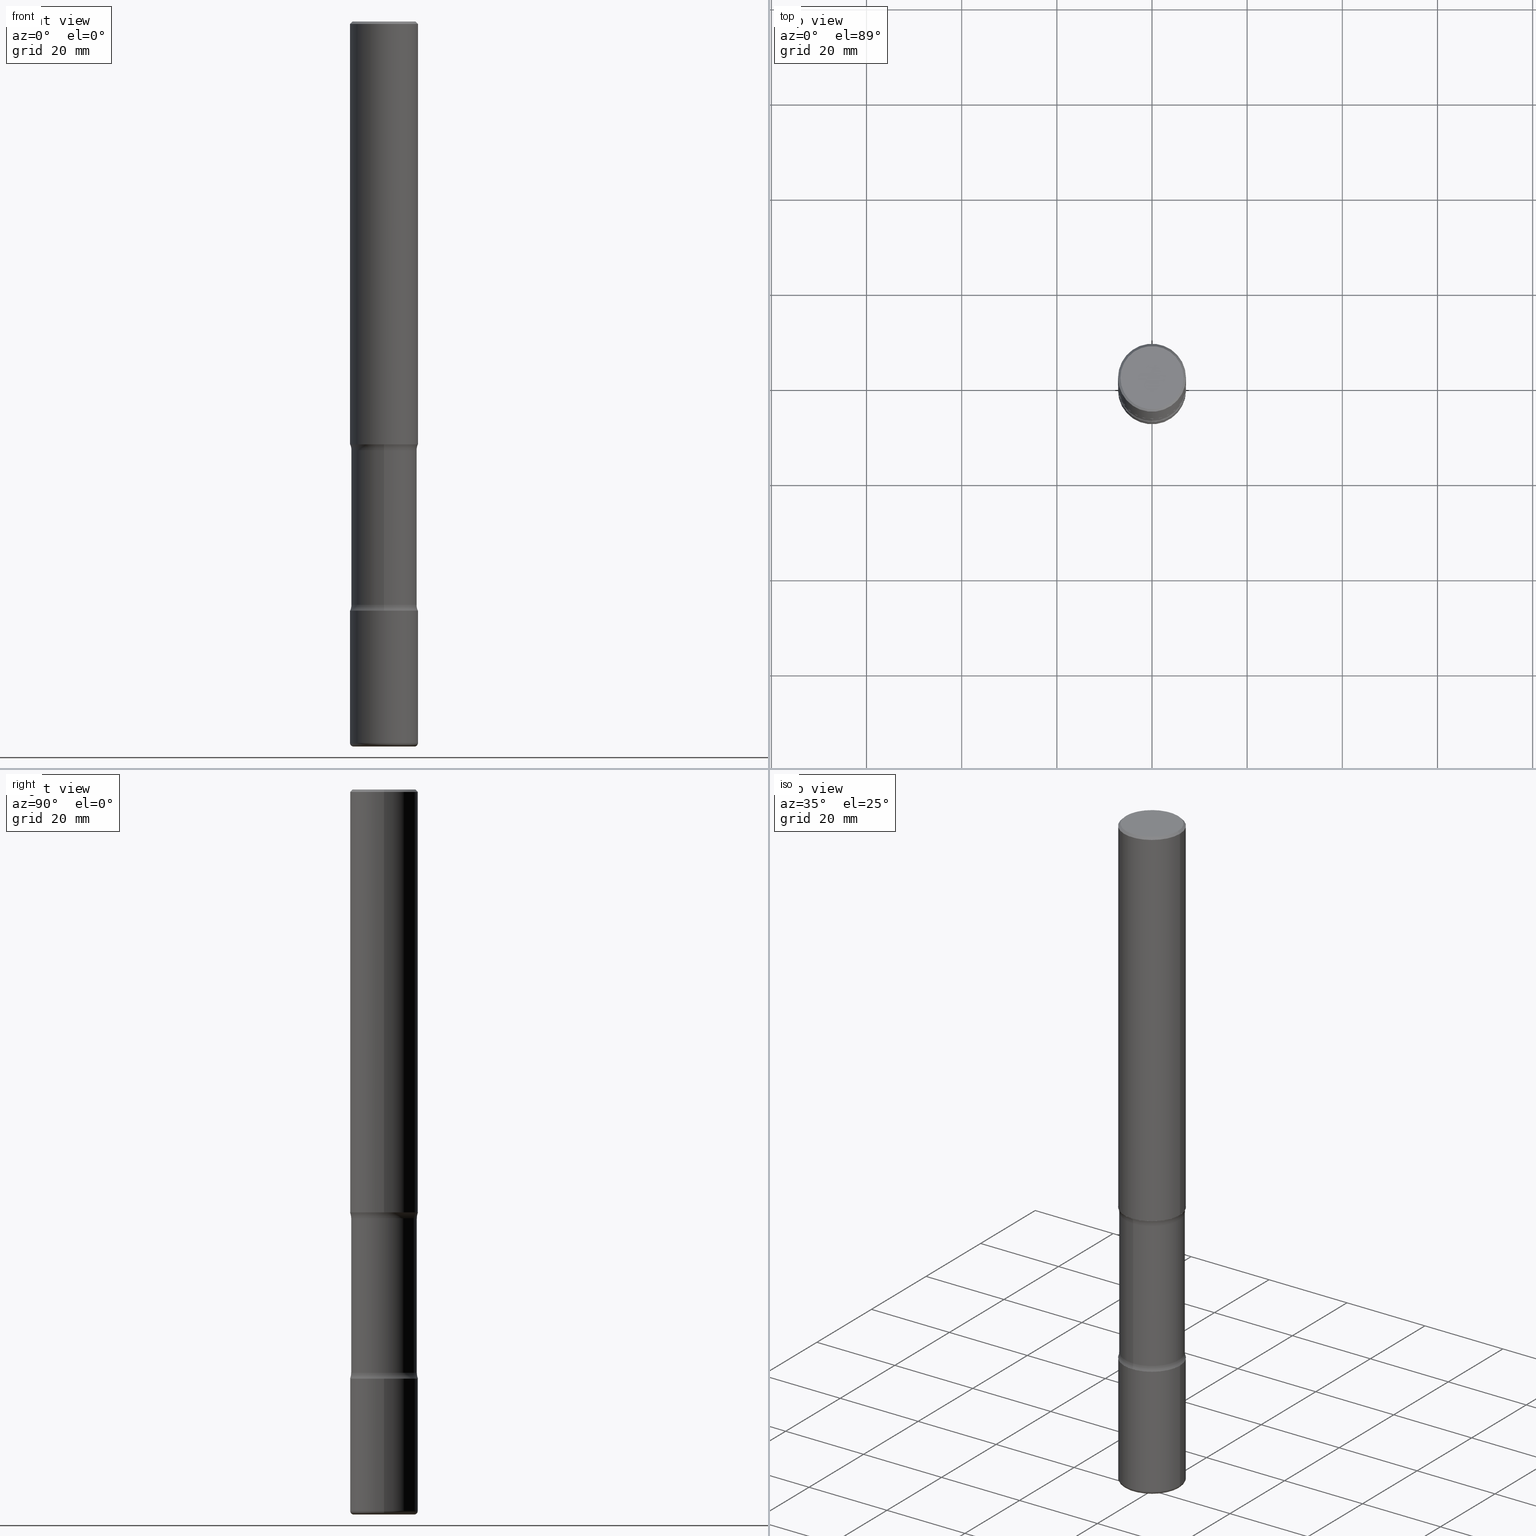
[diagram: canonical four-view strip — front | top / right | iso, engineering-drawing reading convention]
A machine part, canonical four-view strip (front | top / right | iso — engineering-drawing reading convention). The complete STEP part file that produces these views, byte-faithful:
ISO-10303-21;
HEADER;
FILE_DESCRIPTION (( 'STEP AP203' ),
    '1' );
FILE_NAME ('36466.STEP',
    '2024-03-01T23:56:31',
    ( '' ),
    ( '' ),
    'SwSTEP 2.0',
    'SolidWorks 2023',
    '' );
FILE_SCHEMA (( 'CONFIG_CONTROL_DESIGN' ));
ENDSEC;

DATA;
#1 = LINE ( 'NONE', #132, #150 ) ;
#2 = EDGE_CURVE ( 'NONE', #162, #154, #174, .T. ) ;
#3 = PRODUCT ( '36466', '36466', '', ( #446 ) ) ;
#4 = AXIS2_PLACEMENT_3D ( 'NONE', #387, #297, #311 ) ;
#5 = DIRECTION ( 'NONE',  ( 7.105427357601001859E-15, 1.000000000000000000, -3.491481338843145583E-15 ) ) ;
#6 = CIRCLE ( 'NONE', #158, 0.03000000000000029379 ) ;
#7 = ORIENTED_EDGE ( 'NONE', *, *, #63, .F. ) ;
#8 = FACE_OUTER_BOUND ( 'NONE', #534, .T. ) ;
#9 = ORIENTED_EDGE ( 'NONE', *, *, #388, .T. ) ;
#10 = FACE_OUTER_BOUND ( 'NONE', #397, .T. ) ;
#11 = CARTESIAN_POINT ( 'NONE',  ( -0.2812500000000003886, 1.998401444325284534E-15, -1.383450494134194230E-29 ) ) ;
#12 = DIRECTION ( 'NONE',  ( -2.445468806185136597E-29, 3.491481338843145583E-15, 1.000000000000000000 ) ) ;
#13 = EDGE_CURVE ( 'NONE', #408, #396, #46, .T. ) ;
#14 = CIRCLE ( 'NONE', #494, 0.2812500000000004441 ) ;
#15 = SECURITY_CLASSIFICATION ( '', '', #517 ) ;
#16 = CARTESIAN_POINT ( 'NONE',  ( -0.2512500000000003619, -1.905890496929632623E-14, -5.969999999999999751 ) ) ;
#17 = EDGE_LOOP ( 'NONE', ( #84, #167, #67, #259 ) ) ;
#18 = CARTESIAN_POINT ( 'NONE',  ( 1.895874366991938652E-15, 0.2714999999999830882, -4.826601265512413086 ) ) ;
#19 = ADVANCED_FACE ( 'NONE', ( #105 ), #445, .T. ) ;
#20 = AXIS2_PLACEMENT_3D ( 'NONE', #102, #144, #106 ) ;
#21 = CIRCLE ( 'NONE', #418, 0.2812500000000003331 ) ;
#22 = APPROVAL ( #536, 'UNSPECIFIED' ) ;
#23 = CARTESIAN_POINT ( 'NONE',  ( 0.2812500000000003886, -1.963958253099265273E-15, 1.371424718192608693E-29 ) ) ;
#24 = VERTEX_POINT ( 'NONE', #170 ) ;
#25 = ORIENTED_EDGE ( 'NONE', *, *, #177, .T. ) ;
#26 = DIRECTION ( 'NONE',  ( -2.445468806185136597E-29, 3.491481338843145583E-15, 1.000000000000000000 ) ) ;
#27 = CIRCLE ( 'NONE', #257, 0.1250000000000000555 ) ;
#28 = ADVANCED_FACE ( 'NONE', ( #507 ), #74, .F. ) ;
#29 = VERTEX_POINT ( 'NONE', #411 ) ;
#30 = CLOSED_SHELL ( 'NONE', ( #407, #116, #469, #285, #270, #147, #210, #432 ) ) ;
#31 = DIRECTION ( 'NONE',  ( 2.529525800553503552E-29, -3.371106938680637457E-15, -1.000000000000000000 ) ) ;
#32 = ORIENTED_EDGE ( 'NONE', *, *, #295, .T. ) ;
#33 = CALENDAR_DATE ( 2024, 1, 3 ) ;
#34 = CARTESIAN_POINT ( 'NONE',  ( 1.180330283470430845E-28, -1.685198824857329678E-14, -4.826601265512412198 ) ) ;
#35 = ORIENTED_EDGE ( 'NONE', *, *, #366, .F. ) ;
#36 = EDGE_CURVE ( 'NONE', #549, #79, #333, .T. ) ;
#37 = PERSON_AND_ORGANIZATION ( #77, #292 ) ;
#38 = DIRECTION ( 'NONE',  ( -2.445468806185136597E-29, 3.491481338843145583E-15, 1.000000000000000000 ) ) ;
#39 = CARTESIAN_POINT ( 'NONE',  ( 1.459944877292526494E-28, -2.084414359289357934E-14, -5.969999999999999751 ) ) ;
#40 = DATE_AND_TIME ( #33, #313 ) ;
#41 = ORIENTED_EDGE ( 'NONE', *, *, #450, .F. ) ;
#42 = FACE_OUTER_BOUND ( 'NONE', #309, .T. ) ;
#43 = DIRECTION ( 'NONE',  ( 1.000000000000000000, -6.982962677686260400E-15, 4.883557194083111219E-29 ) ) ;
#44 = EDGE_CURVE ( 'NONE', #408, #175, #240, .T. ) ;
#45 = AXIS2_PLACEMENT_3D ( 'NONE', #191, #315, #236 ) ;
#46 = LINE ( 'NONE', #394, #68 ) ;
#47 = FACE_OUTER_BOUND ( 'NONE', #282, .T. ) ;
#48 = LOCAL_TIME ( 18, 56, 31.00000000000000000, #129 ) ;
#49 = DIRECTION ( 'NONE',  ( 2.438088387897960049E-29, -3.491481338843145188E-15, -1.000000000000000000 ) ) ;
#50 = EDGE_CURVE ( 'NONE', #190, #549, #273, .T. ) ;
#51 = ORIENTED_EDGE ( 'NONE', *, *, #76, .T. ) ;
#52 = DIRECTION ( 'NONE',  ( -2.445468806185136877E-29, 3.491481338843145188E-15, 1.000000000000000000 ) ) ;
#53 = DIRECTION ( 'NONE',  ( 6.982962677686266711E-15, 1.000000000000000000, -4.024822090113095251E-15 ) ) ;
#54 = DIRECTION ( 'NONE',  ( -0.7071067811865473507, 2.468850131082255088E-15, -0.7071067811865476838 ) ) ;
#55 = DIRECTION ( 'NONE',  ( -2.438088387897960049E-29, 3.491481338843145188E-15, 1.000000000000000000 ) ) ;
#56 = EDGE_LOOP ( 'NONE', ( #438, #123, #425, #541 ) ) ;
#57 = TOROIDAL_SURFACE ( 'NONE', #376, 0.3965000000000000746, 0.1250000000000000555 ) ;
#58 = DIRECTION ( 'NONE',  ( -2.445468806185136597E-29, 3.491481338843145583E-15, 1.000000000000000000 ) ) ;
#59 = AXIS2_PLACEMENT_3D ( 'NONE', #238, #489, #364 ) ;
#60 = VERTEX_POINT ( 'NONE', #198 ) ;
#61 = CARTESIAN_POINT ( 'NONE',  ( 0.000000000000000000, 0.000000000000000000, 0.000000000000000000 ) ) ;
#62 = ORIENTED_EDGE ( 'NONE', *, *, #519, .F. ) ;
#63 = EDGE_CURVE ( 'NONE', #243, #556, #21, .T. ) ;
#64 = LENGTH_MEASURE_WITH_UNIT ( LENGTH_MEASURE( 0.02539999999999999897 ), #495 );
#65 = CC_DESIGN_PERSON_AND_ORGANIZATION_ASSIGNMENT ( #459, #463, ( #118 ) ) ;
#66 = AXIS2_PLACEMENT_3D ( 'NONE', #274, #12, #488 ) ;
#67 = ORIENTED_EDGE ( 'NONE', *, *, #373, .T. ) ;
#68 = VECTOR ( 'NONE', #52, 39.37007874015748143 ) ;
#69 = AXIS2_PLACEMENT_3D ( 'NONE', #153, #492, #374 ) ;
#70 = ORIENTED_EDGE ( 'NONE', *, *, #486, .F. ) ;
#71 = CARTESIAN_POINT ( 'NONE',  ( 0.2812500000000002220, -1.999344688650107733E-15, -0.02000000000000000042 ) ) ;
#72 = EDGE_CURVE ( 'NONE', #154, #162, #402, .T. ) ;
#73 = PERSON_AND_ORGANIZATION_ROLE ( 'design_owner' ) ;
#74 = PLANE ( 'NONE',  #290 ) ;
#75 = APPROVAL_ROLE ( '' ) ;
#76 = EDGE_CURVE ( 'NONE', #154, #24, #400, .T. ) ;
#77 = PERSON ( 'UNSPECIFIED', 'UNSPECIFIED', 'UNSPECIFIED', ('UNSPECIFIED'), ('UNSPECIFIED'), ('UNSPECIFIED') ) ;
#78 = CARTESIAN_POINT ( 'NONE',  ( -0.2812500000000002220, 1.894128626322401186E-15, -0.02000000000000000042 ) ) ;
#79 = VERTEX_POINT ( 'NONE', #499 ) ;
#80 = APPROVAL_DATE_TIME ( #168, #491 ) ;
#81 = CARTESIAN_POINT ( 'NONE',  ( -1.929515061873162394E-15, -0.2812500000000129341, -3.499999999999999112 ) ) ;
#82 = AXIS2_PLACEMENT_3D ( 'NONE', #135, #405, #440 ) ;
#83 = CLOSED_SHELL ( 'NONE', ( #530, #429, #455, #219, #413, #169 ) ) ;
#84 = ORIENTED_EDGE ( 'NONE', *, *, #50, .F. ) ;
#85 = CIRCLE ( 'NONE', #20, 0.2812500000000003331 ) ;
#86 = APPROVAL_STATUS ( 'not_yet_approved' ) ;
#87 = CARTESIAN_POINT ( 'NONE',  ( 8.565988301991969532E-29, -1.254885679582893261E-14, -3.548398734487589135 ) ) ;
#88 = EDGE_CURVE ( 'NONE', #190, #396, #456, .T. ) ;
#89 = FACE_OUTER_BOUND ( 'NONE', #330, .T. ) ;
#90 = EDGE_LOOP ( 'NONE', ( #477, #378, #444, #490 ) ) ;
#91 = LINE ( 'NONE', #424, #393 ) ;
#92 = AXIS2_PLACEMENT_3D ( 'NONE', #185, #256, #164 ) ;
#93 = SHAPE_DEFINITION_REPRESENTATION ( #140, #365 ) ;
#94 = EDGE_CURVE ( 'NONE', #108, #166, #250, .T. ) ;
#95 = DIRECTION ( 'NONE',  ( 2.529525800553503552E-29, -3.371106938680637457E-15, -1.000000000000000000 ) ) ;
#96 = CC_DESIGN_PERSON_AND_ORGANIZATION_ASSIGNMENT ( #538, #149, ( #197 ) ) ;
#97 = CARTESIAN_POINT ( 'NONE',  ( 4.890937612370273159E-31, -6.982962677686291609E-17, -0.02000000000000000042 ) ) ;
#98 = CYLINDRICAL_SURFACE ( 'NONE', #201, 0.2812500000000003886 ) ;
#99 = EDGE_CURVE ( 'NONE', #243, #514, #117, .T. ) ;
#100 = AXIS2_PLACEMENT_3D ( 'NONE', #522, #95, #266 ) ;
#101 = CIRCLE ( 'NONE', #312, 0.2715000000000000191 ) ;
#102 = CARTESIAN_POINT ( 'NONE',  ( 1.192166043015254091E-28, -1.702097152686033664E-14, -4.875000000000000000 ) ) ;
#103 = LOCAL_TIME ( 18, 56, 31.00000000000000000, #253 ) ;
#104 = FACE_OUTER_BOUND ( 'NONE', #143, .T. ) ;
#105 = FACE_OUTER_BOUND ( 'NONE', #288, .T. ) ;
#106 = DIRECTION ( 'NONE',  ( 1.000000000000000000, -6.982962677686268288E-15, 0.000000000000000000 ) ) ;
#107 = ORIENTED_EDGE ( 'NONE', *, *, #195, .T. ) ;
#108 = VERTEX_POINT ( 'NONE', #142 ) ;
#109 = CYLINDRICAL_SURFACE ( 'NONE', #45, 0.2715000000000000191 ) ;
#110 = AXIS2_PLACEMENT_3D ( 'NONE', #554, #125, #306 ) ;
#111 = VECTOR ( 'NONE', #54, 39.37007874015748143 ) ;
#112 = EDGE_LOOP ( 'NONE', ( #466, #178 ) ) ;
#113 = DIRECTION ( 'NONE',  ( 2.529525800553503552E-29, -3.371106938680637457E-15, -1.000000000000000000 ) ) ;
#114 = DIRECTION ( 'NONE',  ( 1.000000000000000000, -6.982962677686266711E-15, 4.876176775795935232E-29 ) ) ;
#115 = ORIENTED_EDGE ( 'NONE', *, *, #99, .F. ) ;
#116 = ADVANCED_FACE ( 'NONE', ( #547 ), #264, .F. ) ;
#117 = CIRCLE ( 'NONE', #431, 0.1250000000000000555 ) ;
#118 = PRODUCT_DEFINITION_FORMATION_WITH_SPECIFIED_SOURCE ( 'ANY', '', #3, .NOT_KNOWN. ) ;
#119 = PRODUCT_RELATED_PRODUCT_CATEGORY ( 'detail', '', ( #3 ) ) ;
#120 = EDGE_LOOP ( 'NONE', ( #509, #345 ) ) ;
#121 = DIRECTION ( 'NONE',  ( 1.000000000000000000, 0.000000000000000000, 0.000000000000000000 ) ) ;
#122 = CARTESIAN_POINT ( 'NONE',  ( 1.459944877292526494E-28, -2.084414359289357934E-14, -5.969999999999999751 ) ) ;
#123 = ORIENTED_EDGE ( 'NONE', *, *, #341, .T. ) ;
#124 = COORDINATED_UNIVERSAL_TIME_OFFSET ( 5, 0, .BEHIND. ) ;
#125 = DIRECTION ( 'NONE',  ( 2.529525800553503552E-29, -3.371106938680637457E-15, -1.000000000000000000 ) ) ;
#126 = AXIS2_PLACEMENT_3D ( 'NONE', #472, #263, #214 ) ;
#127 = ORIENTED_EDGE ( 'NONE', *, *, #442, .F. ) ;
#128 = APPROVAL_PERSON_ORGANIZATION ( #296, #22, #75 ) ;
#129 = COORDINATED_UNIVERSAL_TIME_OFFSET ( 5, 0, .BEHIND. ) ;
#130 = APPROVAL_ROLE ( '' ) ;
#131 = DIRECTION ( 'NONE',  ( -2.445468806185136597E-29, 3.491481338843145583E-15, 1.000000000000000000 ) ) ;
#132 = CARTESIAN_POINT ( 'NONE',  ( 1.895874366991969024E-15, 0.2714999999999791469, -6.000000000000001776 ) ) ;
#133 = CIRCLE ( 'NONE', #443, 0.2612500000000002043 ) ;
#134 = CC_DESIGN_PERSON_AND_ORGANIZATION_ASSIGNMENT ( #410, #73, ( #3 ) ) ;
#135 = CARTESIAN_POINT ( 'NONE',  ( 1.192166043015254091E-28, -1.702097152686033664E-14, -4.875000000000000000 ) ) ;
#136 = CARTESIAN_POINT ( 'NONE',  ( 1.467281283711081958E-28, -2.094888803305887271E-14, -6.000000000000000888 ) ) ;
#137 = ORIENTED_EDGE ( 'NONE', *, *, #388, .F. ) ;
#138 = CYLINDRICAL_SURFACE ( 'NONE', #272, 0.2715000000000000191 ) ;
#139 = EDGE_CURVE ( 'NONE', #175, #408, #14, .T. ) ;
#140 = PRODUCT_DEFINITION_SHAPE ( 'NONE', 'NONE',  #197 ) ;
#141 = AXIS2_PLACEMENT_3D ( 'NONE', #344, #521, #300 ) ;
#142 = CARTESIAN_POINT ( 'NONE',  ( 0.2512500000000001399, -2.270335740582754769E-14, -6.000000000000000888 ) ) ;
#143 = EDGE_LOOP ( 'NONE', ( #9, #251 ) ) ;
#144 = DIRECTION ( 'NONE',  ( -2.445468806185136597E-29, 3.491481338843145583E-15, 1.000000000000000000 ) ) ;
#145 = CIRCLE ( 'NONE', #531, 0.2812500000000002220 ) ;
#146 = DIRECTION ( 'NONE',  ( -2.445468806185136597E-29, 3.491481338843145583E-15, 1.000000000000000000 ) ) ;
#147 = ADVANCED_FACE ( 'NONE', ( #269 ), #390, .F. ) ;
#148 = CALENDAR_DATE ( 2024, 1, 3 ) ;
#149 = PERSON_AND_ORGANIZATION_ROLE ( 'creator' ) ;
#150 = VECTOR ( 'NONE', #171, 39.37007874015748143 ) ;
#151 = AXIS2_PLACEMENT_3D ( 'NONE', #34, #31, #224 ) ;
#152 = DATE_TIME_ROLE ( 'creation_date' ) ;
#153 = CARTESIAN_POINT ( 'NONE',  ( -2.720187456116294383E-15, -0.3965000000000169500, -4.826601265512411310 ) ) ;
#154 = VERTEX_POINT ( 'NONE', #260 ) ;
#155 = ORIENTED_EDGE ( 'NONE', *, *, #552, .F. ) ;
#156 = CARTESIAN_POINT ( 'NONE',  ( 1.467281283711081958E-28, -2.094888803305887271E-14, -6.000000000000000888 ) ) ;
#157 = DIRECTION ( 'NONE',  ( 1.000000000000000000, -6.982962677686266711E-15, 4.876176775795936353E-29 ) ) ;
#158 = AXIS2_PLACEMENT_3D ( 'NONE', #520, #302, #426 ) ;
#159 = ORIENTED_EDGE ( 'NONE', *, *, #237, .T. ) ;
#160 = PERSON_AND_ORGANIZATION_ROLE ( 'classification_officer' ) ;
#161 = CARTESIAN_POINT ( 'NONE',  ( 1.180330283470430845E-28, -1.685198824857329678E-14, -4.826601265512412198 ) ) ;
#162 = VERTEX_POINT ( 'NONE', #303 ) ;
#163 = EDGE_CURVE ( 'NONE', #108, #162, #6, .T. ) ;
#164 = DIRECTION ( 'NONE',  ( -6.982962677686265922E-15, -1.000000000000000000, 3.371106938680637457E-15 ) ) ;
#165 = CARTESIAN_POINT ( 'NONE',  ( 8.443562454391474787E-29, -1.238569948617446102E-14, -3.500000000000000444 ) ) ;
#166 = VERTEX_POINT ( 'NONE', #268 ) ;
#167 = ORIENTED_EDGE ( 'NONE', *, *, #88, .T. ) ;
#168 = DATE_AND_TIME ( #305, #48 ) ;
#169 = ADVANCED_FACE ( 'NONE', ( #104 ), #217, .F. ) ;
#170 = CARTESIAN_POINT ( 'NONE',  ( -0.2812500000000003331, -1.693415611555167306E-14, -4.875000000000000000 ) ) ;
#171 = DIRECTION ( 'NONE',  ( 2.529525800553503552E-29, -3.371106938680637457E-15, -1.000000000000000000 ) ) ;
#172 = ORIENTED_EDGE ( 'NONE', *, *, #237, .F. ) ;
#173 = CIRCLE ( 'NONE', #231, 0.2812500000000002220 ) ;
#174 = CIRCLE ( 'NONE', #350, 0.2812500000000004441 ) ;
#175 = VERTEX_POINT ( 'NONE', #261 ) ;
#176 = DIRECTION ( 'NONE',  ( -2.445468806185136597E-29, 3.491481338843145583E-15, 1.000000000000000000 ) ) ;
#177 = EDGE_CURVE ( 'NONE', #166, #108, #546, .T. ) ;
#178 = ORIENTED_EDGE ( 'NONE', *, *, #248, .T. ) ;
#179 = DATE_AND_TIME ( #473, #318 ) ;
#180 = DIRECTION ( 'NONE',  ( -1.000000000000000000, 6.982962677686265133E-15, 0.000000000000000000 ) ) ;
#181 = DIRECTION ( 'NONE',  ( 1.000000000000000000, -6.982962677686258033E-15, 0.000000000000000000 ) ) ;
#182 = AXIS2_PLACEMENT_3D ( 'NONE', #380, #550, #180 ) ;
#183 = VECTOR ( 'NONE', #206, 39.37007874015748143 ) ;
#184 = PLANE ( 'NONE',  #310 ) ;
#185 = CARTESIAN_POINT ( 'NONE',  ( 1.192166043015254091E-28, -1.702097152686033664E-14, -4.875000000000000000 ) ) ;
#186 = EDGE_CURVE ( 'NONE', #334, #29, #101, .T. ) ;
#187 = CARTESIAN_POINT ( 'NONE',  ( 0.000000000000000000, 0.000000000000000000, 0.000000000000000000 ) ) ;
#188 = VERTEX_POINT ( 'NONE', #81 ) ;
#189 = ORIENTED_EDGE ( 'NONE', *, *, #139, .F. ) ;
#190 = VERTEX_POINT ( 'NONE', #518 ) ;
#191 = CARTESIAN_POINT ( 'NONE',  ( 1.476737695577523311E-28, -2.081346683287605506E-14, -6.000000000000000888 ) ) ;
#192 = EDGE_LOOP ( 'NONE', ( #371, #336, #226, #35 ) ) ;
#193 = AXIS2_PLACEMENT_3D ( 'NONE', #506, #451, #542 ) ;
#194 = CARTESIAN_POINT ( 'NONE',  ( 0.2812500000000002220, -1.999344688650107733E-15, -0.02000000000000000042 ) ) ;
#195 = EDGE_CURVE ( 'NONE', #29, #537, #91, .T. ) ;
#196 = DIRECTION ( 'NONE',  ( -2.445468806185136597E-29, 3.491481338843145583E-15, 1.000000000000000000 ) ) ;
#197 = PRODUCT_DEFINITION ( 'UNKNOWN', '', #118, #322 ) ;
#198 = CARTESIAN_POINT ( 'NONE',  ( 0.2812500000000003331, -1.898492977995960152E-14, -4.875000000000000000 ) ) ;
#199 =( NAMED_UNIT ( * ) PLANE_ANGLE_UNIT ( ) SI_UNIT ( $, .RADIAN. ) );
#200 = CARTESIAN_POINT ( 'NONE',  ( 0.000000000000000000, 0.000000000000000000, 0.000000000000000000 ) ) ;
#201 = AXIS2_PLACEMENT_3D ( 'NONE', #434, #58, #360 ) ;
#202 = EDGE_CURVE ( 'NONE', #334, #514, #1, .T. ) ;
#203 = DIRECTION ( 'NONE',  ( 1.000000000000000000, -6.982962677686265133E-15, 0.000000000000000000 ) ) ;
#204 = ORIENTED_EDGE ( 'NONE', *, *, #381, .T. ) ;
#205 = ORIENTED_EDGE ( 'NONE', *, *, #186, .F. ) ;
#206 = DIRECTION ( 'NONE',  ( 0.7071067811865473507, -7.319954787623256045E-15, -0.7071067811865476838 ) ) ;
#207 = APPLICATION_PROTOCOL_DEFINITION ( 'international standard', 'config_control_design', 1994, #352 ) ;
#208 = APPLICATION_PROTOCOL_DEFINITION ( 'international standard', 'config_control_design', 1994, #515 ) ;
#209 = VECTOR ( 'NONE', #497, 39.37007874015748143 ) ;
#210 = ADVANCED_FACE ( 'NONE', ( #42 ), #230, .F. ) ;
#211 = DIRECTION ( 'NONE',  ( -2.445468806185136597E-29, 3.491481338843145583E-15, 1.000000000000000000 ) ) ;
#212 = EDGE_LOOP ( 'NONE', ( #332, #252, #216, #62 ) ) ;
#213 = APPROVAL_ROLE ( '' ) ;
#214 = DIRECTION ( 'NONE',  ( 6.982962677686265922E-15, 1.000000000000000000, -3.371106938680637457E-15 ) ) ;
#215 = FACE_OUTER_BOUND ( 'NONE', #278, .T. ) ;
#216 = ORIENTED_EDGE ( 'NONE', *, *, #13, .T. ) ;
#217 = PLANE ( 'NONE',  #476 ) ;
#218 = CARTESIAN_POINT ( 'NONE',  ( 2.768744701702722780E-15, 0.3964999999999831992, -4.826601265512413086 ) ) ;
#219 = ADVANCED_FACE ( 'NONE', ( #215 ), #416, .T. ) ;
#220 = DIRECTION ( 'NONE',  ( 1.000000000000000000, -6.982962677686260400E-15, 4.883557194083111219E-29 ) ) ;
#221 = AXIS2_PLACEMENT_3D ( 'NONE', #16, #5, #279 ) ;
#222 = CC_DESIGN_APPROVAL ( #22, ( #197 ) ) ;
#223 = DIRECTION ( 'NONE',  ( 1.000000000000000000, -6.982962677686265133E-15, 4.876176775795935232E-29 ) ) ;
#224 = DIRECTION ( 'NONE',  ( 6.982962677686265133E-15, 1.000000000000000000, -3.371106938680637063E-15 ) ) ;
#225 = DIRECTION ( 'NONE',  ( 1.000000000000000000, -6.982962677686265133E-15, 0.000000000000000000 ) ) ;
#226 = ORIENTED_EDGE ( 'NONE', *, *, #508, .T. ) ;
#227 = FACE_OUTER_BOUND ( 'NONE', #452, .T. ) ;
#228 = CIRCLE ( 'NONE', #100, 0.2812500000000005551 ) ;
#229 = ADVANCED_FACE ( 'NONE', ( #558 ), #385, .T. ) ;
#230 = TOROIDAL_SURFACE ( 'NONE', #151, 0.3965000000000000746, 0.1250000000000000555 ) ;
#231 = AXIS2_PLACEMENT_3D ( 'NONE', #97, #196, #314 ) ;
#232 = DIRECTION ( 'NONE',  ( -2.445468806185136597E-29, 3.491481338843145583E-15, 1.000000000000000000 ) ) ;
#233 = DIRECTION ( 'NONE',  ( 2.438088387897960049E-29, -3.491481338843145188E-15, -1.000000000000000000 ) ) ;
#234 = CC_DESIGN_DATE_AND_TIME_ASSIGNMENT ( #283, #152, ( #197 ) ) ;
#235 = PLANE ( 'NONE',  #464 ) ;
#236 = DIRECTION ( 'NONE',  ( 6.982962677686265133E-15, 1.000000000000000000, -4.024822090113094462E-15 ) ) ;
#237 = EDGE_CURVE ( 'NONE', #29, #188, #27, .T. ) ;
#238 = CARTESIAN_POINT ( 'NONE',  ( 4.890937612370273159E-31, -6.982962677686291609E-17, -0.02000000000000000042 ) ) ;
#239 = ORIENTED_EDGE ( 'NONE', *, *, #242, .T. ) ;
#240 = CIRCLE ( 'NONE', #503, 0.2812500000000004441 ) ;
#241 = FACE_OUTER_BOUND ( 'NONE', #56, .T. ) ;
#242 = EDGE_CURVE ( 'NONE', #514, #537, #368, .T. ) ;
#243 = VERTEX_POINT ( 'NONE', #382 ) ;
#244 = DIRECTION ( 'NONE',  ( -1.000000000000000000, 6.982962677686265922E-15, -4.876176775795935793E-29 ) ) ;
#245 = DIRECTION ( 'NONE',  ( -2.445468806185136597E-29, 3.491481338843145583E-15, 1.000000000000000000 ) ) ;
#246 = DATE_AND_TIME ( #148, #103 ) ;
#247 = DIRECTION ( 'NONE',  ( -2.445468806185136597E-29, 3.491481338843145583E-15, 1.000000000000000000 ) ) ;
#248 = EDGE_CURVE ( 'NONE', #556, #243, #555, .T. ) ;
#249 = CARTESIAN_POINT ( 'NONE',  ( 4.890937612370273159E-31, -6.982962677686291609E-17, -0.02000000000000000042 ) ) ;
#250 = CIRCLE ( 'NONE', #359, 0.2512500000000001399 ) ;
#251 = ORIENTED_EDGE ( 'NONE', *, *, #366, .T. ) ;
#252 = ORIENTED_EDGE ( 'NONE', *, *, #139, .T. ) ;
#253 = COORDINATED_UNIVERSAL_TIME_OFFSET ( 5, 0, .BEHIND. ) ;
#254 = ORIENTED_EDGE ( 'NONE', *, *, #519, .T. ) ;
#255 = CARTESIAN_POINT ( 'NONE',  ( 1.824298999545538283E-15, 0.2612500000000002043, -9.121494997727724939E-16 ) ) ;
#256 = DIRECTION ( 'NONE',  ( -2.529525800553502991E-29, 3.371106938680637457E-15, 1.000000000000000000 ) ) ;
#257 = AXIS2_PLACEMENT_3D ( 'NONE', #512, #349, #419 ) ;
#258 = CARTESIAN_POINT ( 'NONE',  ( 1.467281283711081958E-28, -2.094888803305887271E-14, -6.000000000000000888 ) ) ;
#259 = ORIENTED_EDGE ( 'NONE', *, *, #36, .F. ) ;
#260 = CARTESIAN_POINT ( 'NONE',  ( -0.2812500000000005551, -1.884574214856829125E-14, -5.969999999999999751 ) ) ;
#261 = CARTESIAN_POINT ( 'NONE',  ( -0.2812500000000004441, -4.146605712038649025E-15, -3.500000000000000444 ) ) ;
#262 = DIRECTION ( 'NONE',  ( 6.982962677686266711E-15, 1.000000000000000000, -4.024822090113094462E-15 ) ) ;
#263 = DIRECTION ( 'NONE',  ( 2.529525800553502991E-29, -3.371106938680637457E-15, -1.000000000000000000 ) ) ;
#264 = TOROIDAL_SURFACE ( 'NONE', #343, 0.3965000000000000746, 0.1250000000000000555 ) ;
#265 = CC_DESIGN_APPROVAL ( #491, ( #15 ) ) ;
#266 = DIRECTION ( 'NONE',  ( 6.982962677686265922E-15, 1.000000000000000000, -3.885294924322499800E-15 ) ) ;
#267 = DIRECTION ( 'NONE',  ( 1.000000000000000000, -6.982962677686265922E-15, 4.876176775795935793E-29 ) ) ;
#268 = CARTESIAN_POINT ( 'NONE',  ( -0.2512500000000001399, -1.900469577901495701E-14, -6.000000000000000888 ) ) ;
#269 = FACE_OUTER_BOUND ( 'NONE', #112, .T. ) ;
#270 = ADVANCED_FACE ( 'NONE', ( #308 ), #465, .F. ) ;
#271 = CARTESIAN_POINT ( 'NONE',  ( 1.459944877292526494E-28, -2.084414359289357934E-14, -5.969999999999999751 ) ) ;
#272 = AXIS2_PLACEMENT_3D ( 'NONE', #524, #276, #321 ) ;
#273 = CIRCLE ( 'NONE', #483, 0.2612500000000002043 ) ;
#274 = CARTESIAN_POINT ( 'NONE',  ( 0.000000000000000000, 0.000000000000000000, 0.000000000000000000 ) ) ;
#275 = ADVANCED_FACE ( 'NONE', ( #468 ), #435, .T. ) ;
#276 = DIRECTION ( 'NONE',  ( 2.529525800553503552E-29, -3.371106938680637457E-15, -1.000000000000000000 ) ) ;
#277 = DIRECTION ( 'NONE',  ( -2.445468806185136597E-29, 3.491481338843145583E-15, 1.000000000000000000 ) ) ;
#278 = EDGE_LOOP ( 'NONE', ( #41, #25, #496, #289 ) ) ;
#279 = DIRECTION ( 'NONE',  ( -1.000000000000000000, 7.105427357601050768E-15, 0.000000000000000000 ) ) ;
#280 = AXIS2_PLACEMENT_3D ( 'NONE', #342, #176, #223 ) ;
#281 = DIRECTION ( 'NONE',  ( 0.000000000000000000, 0.000000000000000000, 1.000000000000000000 ) ) ;
#282 = EDGE_LOOP ( 'NONE', ( #127, #159, #32, #353 ) ) ;
#283 = DATE_AND_TIME ( #329, #559 ) ;
#284 = ORIENTED_EDGE ( 'NONE', *, *, #163, .F. ) ;
#285 = ADVANCED_FACE ( 'NONE', ( #89 ), #481, .F. ) ;
#286 = CYLINDRICAL_SURFACE ( 'NONE', #386, 0.2812500000000003886 ) ;
#287 = EDGE_LOOP ( 'NONE', ( #398, #487 ) ) ;
#288 = EDGE_LOOP ( 'NONE', ( #357, #70, #470, #254 ) ) ;
#289 = ORIENTED_EDGE ( 'NONE', *, *, #72, .F. ) ;
#290 = AXIS2_PLACEMENT_3D ( 'NONE', #255, #49, #291 ) ;
#291 = DIRECTION ( 'NONE',  ( -1.000000000000000000, 6.982962677686265922E-15, -4.876176775795935793E-29 ) ) ;
#292 = ORGANIZATION ( 'UNSPECIFIED', 'UNSPECIFIED', '' ) ;
#293 = DIRECTION ( 'NONE',  ( 6.982962677686265133E-15, 1.000000000000000000, -3.885294924322502955E-15 ) ) ;
#294 = EDGE_LOOP ( 'NONE', ( #417, #51, #137, #498 ) ) ;
#295 = EDGE_CURVE ( 'NONE', #188, #422, #324, .T. ) ;
#296 = PERSON_AND_ORGANIZATION ( #77, #292 ) ;
#297 = DIRECTION ( 'NONE',  ( 2.529525800553503552E-29, -3.371106938680637457E-15, -1.000000000000000000 ) ) ;
#298 = PERSON_AND_ORGANIZATION ( #77, #292 ) ;
#299 = AXIS2_PLACEMENT_3D ( 'NONE', #271, #146, #43 ) ;
#300 = DIRECTION ( 'NONE',  ( 6.982962677686265133E-15, 1.000000000000000000, -3.885294924322502955E-15 ) ) ;
#301 = CC_DESIGN_APPROVAL ( #484, ( #118 ) ) ;
#302 = DIRECTION ( 'NONE',  ( -6.982962677686266711E-15, -1.000000000000000000, 3.491481338843145583E-15 ) ) ;
#303 = CARTESIAN_POINT ( 'NONE',  ( 0.2812500000000005551, -2.280810184599284737E-14, -5.969999999999999751 ) ) ;
#304 = ORIENTED_EDGE ( 'NONE', *, *, #44, .F. ) ;
#305 = CALENDAR_DATE ( 2024, 1, 3 ) ;
#306 = DIRECTION ( 'NONE',  ( 6.982962677686266711E-15, 1.000000000000000000, -4.024822090113095251E-15 ) ) ;
#307 = DIMENSIONAL_EXPONENTS ( 1.000000000000000000, 0.000000000000000000, 0.000000000000000000, 0.000000000000000000, 0.000000000000000000, 0.000000000000000000, 0.000000000000000000 ) ;
#308 = FACE_OUTER_BOUND ( 'NONE', #120, .T. ) ;
#309 = EDGE_LOOP ( 'NONE', ( #155, #7, #447, #239 ) ) ;
#310 = AXIS2_PLACEMENT_3D ( 'NONE', #136, #233, #395 ) ;
#311 = DIRECTION ( 'NONE',  ( 6.982962677686265133E-15, 1.000000000000000000, -3.371106938680637063E-15 ) ) ;
#312 = AXIS2_PLACEMENT_3D ( 'NONE', #87, #460, #262 ) ;
#313 = LOCAL_TIME ( 18, 56, 31.00000000000000000, #124 ) ;
#314 = DIRECTION ( 'NONE',  ( 1.000000000000000000, -6.982962677686265133E-15, 0.000000000000000000 ) ) ;
#315 = DIRECTION ( 'NONE',  ( 2.529525800553503552E-29, -3.371106938680637457E-15, -1.000000000000000000 ) ) ;
#316 = ORIENTED_EDGE ( 'NONE', *, *, #94, .F. ) ;
#317 = ORIENTED_EDGE ( 'NONE', *, *, #2, .F. ) ;
#318 = LOCAL_TIME ( 18, 56, 31.00000000000000000, #423 ) ;
#319 = DIRECTION ( 'NONE',  ( -2.445468806185136877E-29, 3.491481338843145188E-15, 1.000000000000000000 ) ) ;
#320 = EDGE_LOOP ( 'NONE', ( #304, #189 ) ) ;
#321 = DIRECTION ( 'NONE',  ( 6.982962677686265133E-15, 1.000000000000000000, -4.024822090113094462E-15 ) ) ;
#322 = DESIGN_CONTEXT ( 'detailed design', #352, 'design' ) ;
#323 = FACE_OUTER_BOUND ( 'NONE', #294, .T. ) ;
#324 = CIRCLE ( 'NONE', #348, 0.2812500000000005551 ) ;
#325 = AXIS2_PLACEMENT_3D ( 'NONE', #258, #131, #433 ) ;
#326 = COORDINATED_UNIVERSAL_TIME_OFFSET ( 5, 0, .BEHIND. ) ;
#327 = EDGE_CURVE ( 'NONE', #334, #422, #454, .T. ) ;
#328 = DIRECTION ( 'NONE',  ( 2.529525800553503552E-29, -3.371106938680637457E-15, -1.000000000000000000 ) ) ;
#329 = CALENDAR_DATE ( 2024, 1, 3 ) ;
#330 = EDGE_LOOP ( 'NONE', ( #172, #205, #338, #474 ) ) ;
#331 =( NAMED_UNIT ( * ) SI_UNIT ( $, .STERADIAN. ) SOLID_ANGLE_UNIT ( ) );
#332 = ORIENTED_EDGE ( 'NONE', *, *, #341, .F. ) ;
#333 = LINE ( 'NONE', #78, #111 ) ;
#334 = VERTEX_POINT ( 'NONE', #347 ) ;
#335 = EDGE_CURVE ( 'NONE', #422, #188, #228, .T. ) ;
#336 = ORIENTED_EDGE ( 'NONE', *, *, #72, .T. ) ;
#337 = DIRECTION ( 'NONE',  ( 2.529525800553503552E-29, -3.371106938680637457E-15, -1.000000000000000000 ) ) ;
#338 = ORIENTED_EDGE ( 'NONE', *, *, #327, .T. ) ;
#339 = PERSON_AND_ORGANIZATION_ROLE ( 'creator' ) ;
#340 = TOROIDAL_SURFACE ( 'NONE', #299, 0.2512500000000003619, 0.03000000000000029379 ) ;
#341 = EDGE_CURVE ( 'NONE', #175, #79, #351, .T. ) ;
#342 = CARTESIAN_POINT ( 'NONE',  ( 0.000000000000000000, 0.000000000000000000, 0.000000000000000000 ) ) ;
#343 = AXIS2_PLACEMENT_3D ( 'NONE', #161, #328, #500 ) ;
#344 = CARTESIAN_POINT ( 'NONE',  ( 1.192166043015254091E-28, -1.702097152686033664E-14, -4.875000000000000000 ) ) ;
#345 = ORIENTED_EDGE ( 'NONE', *, *, #295, .F. ) ;
#346 = PERSON_AND_ORGANIZATION ( #77, #292 ) ;
#347 = CARTESIAN_POINT ( 'NONE',  ( 1.895874366991907098E-15, 0.2714999999999874736, -3.548398734487590467 ) ) ;
#348 = AXIS2_PLACEMENT_3D ( 'NONE', #165, #337, #427 ) ;
#349 = DIRECTION ( 'NONE',  ( 1.000000000000000000, -6.860497997771530774E-15, 4.842273040862726370E-29 ) ) ;
#350 = AXIS2_PLACEMENT_3D ( 'NONE', #122, #247, #403 ) ;
#351 = LINE ( 'NONE', #439, #540 ) ;
#352 = APPLICATION_CONTEXT ( 'configuration controlled 3d designs of mechanical parts and assemblies' ) ;
#353 = ORIENTED_EDGE ( 'NONE', *, *, #327, .F. ) ;
#354 = DIRECTION ( 'NONE',  ( 2.529525800553503552E-29, -3.371106938680637457E-15, -1.000000000000000000 ) ) ;
#355 = CARTESIAN_POINT ( 'NONE',  ( 1.192166043015254091E-28, -1.702097152686033664E-14, -4.875000000000000000 ) ) ;
#356 = DIRECTION ( 'NONE',  ( -6.982962677686267499E-15, -1.000000000000000000, 0.000000000000000000 ) ) ;
#357 = ORIENTED_EDGE ( 'NONE', *, *, #88, .F. ) ;
#358 = CARTESIAN_POINT ( 'NONE',  ( 0.2812500000000004441, -1.418414293905027580E-14, -3.500000000000000444 ) ) ;
#359 = AXIS2_PLACEMENT_3D ( 'NONE', #156, #211, #181 ) ;
#360 = DIRECTION ( 'NONE',  ( 1.000000000000000000, -6.982962677686266711E-15, 4.876176775795935232E-29 ) ) ;
#361 = MANIFOLD_SOLID_BREP ( 'Body-Move/Copy2[1]', #83 ) ;
#362 = MANIFOLD_SOLID_BREP ( 'Body-Move/Copy2[2]', #516 ) ;
#363 = FACE_OUTER_BOUND ( 'NONE', #192, .T. ) ;
#364 = DIRECTION ( 'NONE',  ( -1.000000000000000000, 6.982962677686265133E-15, 0.000000000000000000 ) ) ;
#365 = ADVANCED_BREP_SHAPE_REPRESENTATION ( '36466', ( #361, #362, #544, #457 ), #420 ) ;
#366 = EDGE_CURVE ( 'NONE', #24, #60, #527, .T. ) ;
#367 = CARTESIAN_POINT ( 'NONE',  ( -0.2612500000000002043, 1.859213812933969932E-15, -1.288019758893704152E-29 ) ) ;
#368 = CIRCLE ( 'NONE', #110, 0.2714999999999999636 ) ;
#369 = CARTESIAN_POINT ( 'NONE',  ( -1.929515061873125712E-15, -0.2812500000000173750, -4.875000000000000000 ) ) ;
#370 = CC_DESIGN_SECURITY_CLASSIFICATION ( #15, ( #118 ) ) ;
#371 = ORIENTED_EDGE ( 'NONE', *, *, #76, .F. ) ;
#372 = DIRECTION ( 'NONE',  ( -2.445468806185136597E-29, 3.491481338843145583E-15, 1.000000000000000000 ) ) ;
#373 = EDGE_CURVE ( 'NONE', #396, #79, #173, .T. ) ;
#374 = DIRECTION ( 'NONE',  ( 6.860497997771530774E-15, 1.000000000000000000, 0.000000000000000000 ) ) ;
#375 = CC_DESIGN_PERSON_AND_ORGANIZATION_ASSIGNMENT ( #346, #160, ( #15 ) ) ;
#376 = AXIS2_PLACEMENT_3D ( 'NONE', #525, #482, #501 ) ;
#377 = DIRECTION ( 'NONE',  ( -2.445468806185136877E-29, 3.491481338843145188E-15, 1.000000000000000000 ) ) ;
#378 = ORIENTED_EDGE ( 'NONE', *, *, #442, .T. ) ;
#379 = PERSON_AND_ORGANIZATION ( #77, #292 ) ;
#380 = CARTESIAN_POINT ( 'NONE',  ( 4.890937612370273159E-31, -6.982962677686291609E-17, -0.02000000000000000042 ) ) ;
#381 = EDGE_CURVE ( 'NONE', #537, #514, #391, .T. ) ;
#382 = CARTESIAN_POINT ( 'NONE',  ( 1.963958253099383602E-15, 0.2812499999999832911, -4.875000000000000888 ) ) ;
#383 = AXIS2_PLACEMENT_3D ( 'NONE', #436, #354, #480 ) ;
#384 = CC_DESIGN_DATE_AND_TIME_ASSIGNMENT ( #179, #428, ( #15 ) ) ;
#385 = CYLINDRICAL_SURFACE ( 'NONE', #280, 0.2812500000000003331 ) ;
#386 = AXIS2_PLACEMENT_3D ( 'NONE', #61, #26, #114 ) ;
#387 = CARTESIAN_POINT ( 'NONE',  ( 8.582116454191866571E-29, -1.252576036392126443E-14, -3.548398734487589135 ) ) ;
#388 = EDGE_CURVE ( 'NONE', #60, #24, #85, .T. ) ;
#389 = DIRECTION ( 'NONE',  ( 2.529525800553503552E-29, -3.371106938680637457E-15, -1.000000000000000000 ) ) ;
#390 = PLANE ( 'NONE',  #92 ) ;
#391 = CIRCLE ( 'NONE', #539, 0.2714999999999999636 ) ;
#392 = FACE_OUTER_BOUND ( 'NONE', #90, .T. ) ;
#393 = VECTOR ( 'NONE', #389, 39.37007874015748143 ) ;
#394 = CARTESIAN_POINT ( 'NONE',  ( 0.2812500000000003331, -1.963958253099264484E-15, 1.371424718192608413E-29 ) ) ;
#395 = DIRECTION ( 'NONE',  ( -1.000000000000000000, 6.982962677686265922E-15, -4.876176775795935793E-29 ) ) ;
#396 = VERTEX_POINT ( 'NONE', #194 ) ;
#397 = EDGE_LOOP ( 'NONE', ( #510, #462, #317, #284 ) ) ;
#398 = ORIENTED_EDGE ( 'NONE', *, *, #486, .T. ) ;
#399 = CARTESIAN_POINT ( 'NONE',  ( 1.963958253099350865E-15, 0.2812499999999881761, -3.500000000000001332 ) ) ;
#400 = LINE ( 'NONE', #11, #529 ) ;
#401 = CARTESIAN_POINT ( 'NONE',  ( 1.179923458255204953E-28, -1.685781421720586347E-14, -4.826601265512412198 ) ) ;
#402 = CIRCLE ( 'NONE', #193, 0.2812500000000004441 ) ;
#403 = DIRECTION ( 'NONE',  ( 1.000000000000000000, -6.982962677686265133E-15, 0.000000000000000000 ) ) ;
#404 = APPROVAL_PERSON_ORGANIZATION ( #379, #484, #213 ) ;
#405 = DIRECTION ( 'NONE',  ( -2.445468806185136597E-29, 3.491481338843145583E-15, 1.000000000000000000 ) ) ;
#406 = ORIENTED_EDGE ( 'NONE', *, *, #202, .F. ) ;
#407 = ADVANCED_FACE ( 'NONE', ( #227 ), #138, .T. ) ;
#408 = VERTEX_POINT ( 'NONE', #358 ) ;
#409 = APPROVAL_DATE_TIME ( #246, #22 ) ;
#410 = PERSON_AND_ORGANIZATION ( #77, #292 ) ;
#411 = CARTESIAN_POINT ( 'NONE',  ( -1.896070134134024035E-15, -0.2715000000000126201, -3.548398734487588246 ) ) ;
#412 = CIRCLE ( 'NONE', #221, 0.03000000000000029379 ) ;
#413 = ADVANCED_FACE ( 'NONE', ( #363 ), #98, .T. ) ;
#414 = APPROVAL_PERSON_ORGANIZATION ( #298, #491, #130 ) ;
#415 = CARTESIAN_POINT ( 'NONE',  ( 0.000000000000000000, 0.000000000000000000, 0.000000000000000000 ) ) ;
#416 = TOROIDAL_SURFACE ( 'NONE', #493, 0.2512500000000003619, 0.03000000000000029379 ) ;
#417 = ORIENTED_EDGE ( 'NONE', *, *, #2, .T. ) ;
#418 = AXIS2_PLACEMENT_3D ( 'NONE', #448, #113, #293 ) ;
#419 = DIRECTION ( 'NONE',  ( 6.860497997771530774E-15, 1.000000000000000000, 0.000000000000000000 ) ) ;
#420 =( GEOMETRIC_REPRESENTATION_CONTEXT ( 3 ) GLOBAL_UNCERTAINTY_ASSIGNED_CONTEXT ( ( #533 ) ) GLOBAL_UNIT_ASSIGNED_CONTEXT ( ( #453, #199, #331 ) ) REPRESENTATION_CONTEXT ( 'NONE', 'WORKASPACE' ) );
#421 = ADVANCED_FACE ( 'NONE', ( #485 ), #235, .F. ) ;
#422 = VERTEX_POINT ( 'NONE', #399 ) ;
#423 = COORDINATED_UNIVERSAL_TIME_OFFSET ( 5, 0, .BEHIND. ) ;
#424 = CARTESIAN_POINT ( 'NONE',  ( -1.862625206394822961E-15, -0.2715000000000208358, -5.999999999999999112 ) ) ;
#425 = ORIENTED_EDGE ( 'NONE', *, *, #373, .F. ) ;
#426 = DIRECTION ( 'NONE',  ( 1.000000000000000000, -6.982962677686329031E-15, 0.000000000000000000 ) ) ;
#427 = DIRECTION ( 'NONE',  ( 6.982962677686265922E-15, 1.000000000000000000, -3.885294924322499800E-15 ) ) ;
#428 = DATE_TIME_ROLE ( 'classification_date' ) ;
#429 = ADVANCED_FACE ( 'NONE', ( #10 ), #340, .T. ) ;
#430 = CARTESIAN_POINT ( 'NONE',  ( 2.768744701702690831E-15, 0.3964999999999875846, -3.548398734487590467 ) ) ;
#431 = AXIS2_PLACEMENT_3D ( 'NONE', #218, #557, #356 ) ;
#432 = ADVANCED_FACE ( 'NONE', ( #392 ), #109, .T. ) ;
#433 = DIRECTION ( 'NONE',  ( 1.000000000000000000, -6.982962677686258033E-15, 0.000000000000000000 ) ) ;
#434 = CARTESIAN_POINT ( 'NONE',  ( 0.000000000000000000, 0.000000000000000000, 0.000000000000000000 ) ) ;
#435 = CONICAL_SURFACE ( 'NONE', #182, 0.2812500000000002220, 0.7853981633974480570 ) ;
#436 = CARTESIAN_POINT ( 'NONE',  ( 8.565988301991969532E-29, -1.254885679582893261E-14, -3.548398734487589135 ) ) ;
#437 = ADVANCED_FACE ( 'NONE', ( #241 ), #478, .T. ) ;
#438 = ORIENTED_EDGE ( 'NONE', *, *, #44, .T. ) ;
#439 = CARTESIAN_POINT ( 'NONE',  ( -0.2812500000000003331, 1.998401444325284139E-15, -1.383450494134193670E-29 ) ) ;
#440 = DIRECTION ( 'NONE',  ( 1.000000000000000000, -6.982962677686268288E-15, 0.000000000000000000 ) ) ;
#441 = ORIENTED_EDGE ( 'NONE', *, *, #186, .T. ) ;
#442 = EDGE_CURVE ( 'NONE', #29, #334, #513, .T. ) ;
#443 = AXIS2_PLACEMENT_3D ( 'NONE', #187, #372, #157 ) ;
#444 = ORIENTED_EDGE ( 'NONE', *, *, #202, .T. ) ;
#445 = CONICAL_SURFACE ( 'NONE', #59, 0.2812500000000002220, 0.7853981633974480570 ) ;
#446 = MECHANICAL_CONTEXT ( 'NONE', #515, 'mechanical' ) ;
#447 = ORIENTED_EDGE ( 'NONE', *, *, #99, .T. ) ;
#448 = CARTESIAN_POINT ( 'NONE',  ( 1.192166043015254091E-28, -1.702097152686033664E-14, -4.875000000000000000 ) ) ;
#449 = DIRECTION ( 'NONE',  ( -2.445468806185136597E-29, 3.491481338843145583E-15, 1.000000000000000000 ) ) ;
#450 = EDGE_CURVE ( 'NONE', #166, #154, #412, .T. ) ;
#451 = DIRECTION ( 'NONE',  ( -2.445468806185136597E-29, 3.491481338843145583E-15, 1.000000000000000000 ) ) ;
#452 = EDGE_LOOP ( 'NONE', ( #441, #107, #523, #406 ) ) ;
#453 =( CONVERSION_BASED_UNIT ( 'INCH', #64 ) LENGTH_UNIT ( ) NAMED_UNIT ( #307 ) );
#454 = CIRCLE ( 'NONE', #461, 0.1250000000000000555 ) ;
#455 = ADVANCED_FACE ( 'NONE', ( #8 ), #184, .T. ) ;
#456 = LINE ( 'NONE', #71, #183 ) ;
#457 = AXIS2_PLACEMENT_3D ( 'NONE', #415, #281, #121 ) ;
#458 = ORIENTED_EDGE ( 'NONE', *, *, #177, .F. ) ;
#459 = PERSON_AND_ORGANIZATION ( #77, #292 ) ;
#460 = DIRECTION ( 'NONE',  ( 2.529525800553503552E-29, -3.371106938680637457E-15, -1.000000000000000000 ) ) ;
#461 = AXIS2_PLACEMENT_3D ( 'NONE', #430, #560, #475 ) ;
#462 = ORIENTED_EDGE ( 'NONE', *, *, #450, .T. ) ;
#463 = PERSON_AND_ORGANIZATION_ROLE ( 'design_supplier' ) ;
#464 = AXIS2_PLACEMENT_3D ( 'NONE', #528, #55, #267 ) ;
#465 = PLANE ( 'NONE',  #126 ) ;
#466 = ORIENTED_EDGE ( 'NONE', *, *, #63, .T. ) ;
#467 = APPROVAL_STATUS ( 'not_yet_approved' ) ;
#468 = FACE_OUTER_BOUND ( 'NONE', #17, .T. ) ;
#469 = ADVANCED_FACE ( 'NONE', ( #47 ), #57, .F. ) ;
#470 = ORIENTED_EDGE ( 'NONE', *, *, #36, .T. ) ;
#471 = ORIENTED_EDGE ( 'NONE', *, *, #552, .T. ) ;
#472 = CARTESIAN_POINT ( 'NONE',  ( 8.559140821647978089E-29, -1.222018468595101092E-14, -3.500000000000000444 ) ) ;
#473 = CALENDAR_DATE ( 2024, 1, 3 ) ;
#474 = ORIENTED_EDGE ( 'NONE', *, *, #335, .T. ) ;
#475 = DIRECTION ( 'NONE',  ( -6.982962677686267499E-15, -1.000000000000000000, 0.000000000000000000 ) ) ;
#476 = AXIS2_PLACEMENT_3D ( 'NONE', #355, #526, #244 ) ;
#477 = ORIENTED_EDGE ( 'NONE', *, *, #195, .F. ) ;
#478 = CYLINDRICAL_SURFACE ( 'NONE', #66, 0.2812500000000003331 ) ;
#479 = CARTESIAN_POINT ( 'NONE',  ( 8.559140821647978089E-29, -1.222018468595101092E-14, -3.500000000000000444 ) ) ;
#480 = DIRECTION ( 'NONE',  ( 6.982962677686266711E-15, 1.000000000000000000, -4.024822090113094462E-15 ) ) ;
#481 = TOROIDAL_SURFACE ( 'NONE', #4, 0.3965000000000000746, 0.1250000000000000555 ) ;
#482 = DIRECTION ( 'NONE',  ( 2.529525800553503552E-29, -3.371106938680637457E-15, -1.000000000000000000 ) ) ;
#483 = AXIS2_PLACEMENT_3D ( 'NONE', #200, #245, #535 ) ;
#484 = APPROVAL ( #467, 'UNSPECIFIED' ) ;
#485 = FACE_OUTER_BOUND ( 'NONE', #320, .T. ) ;
#486 = EDGE_CURVE ( 'NONE', #549, #190, #133, .T. ) ;
#487 = ORIENTED_EDGE ( 'NONE', *, *, #50, .T. ) ;
#488 = DIRECTION ( 'NONE',  ( 1.000000000000000000, -6.982962677686265133E-15, 4.876176775795935232E-29 ) ) ;
#489 = DIRECTION ( 'NONE',  ( 2.445468806185136597E-29, -3.491481338843145583E-15, -1.000000000000000000 ) ) ;
#490 = ORIENTED_EDGE ( 'NONE', *, *, #381, .F. ) ;
#491 = APPROVAL ( #86, 'UNSPECIFIED' ) ;
#492 = DIRECTION ( 'NONE',  ( 1.000000000000000000, -6.860497997771530774E-15, 4.842273040862726370E-29 ) ) ;
#493 = AXIS2_PLACEMENT_3D ( 'NONE', #39, #38, #220 ) ;
#494 = AXIS2_PLACEMENT_3D ( 'NONE', #553, #277, #225 ) ;
#495 =( LENGTH_UNIT ( ) NAMED_UNIT ( * ) SI_UNIT ( $, .METRE. ) );
#496 = ORIENTED_EDGE ( 'NONE', *, *, #163, .T. ) ;
#497 = DIRECTION ( 'NONE',  ( -2.445468806185136877E-29, 3.491481338843145188E-15, 1.000000000000000000 ) ) ;
#498 = ORIENTED_EDGE ( 'NONE', *, *, #508, .F. ) ;
#499 = CARTESIAN_POINT ( 'NONE',  ( -0.2812500000000002220, 1.894128626322401186E-15, -0.02000000000000000042 ) ) ;
#500 = DIRECTION ( 'NONE',  ( 6.982962677686265133E-15, 1.000000000000000000, -3.371106938680637063E-15 ) ) ;
#501 = DIRECTION ( 'NONE',  ( 6.982962677686265133E-15, 1.000000000000000000, -3.371106938680637063E-15 ) ) ;
#502 = DIRECTION ( 'NONE',  ( 1.000000000000000000, -6.982962677686265133E-15, 0.000000000000000000 ) ) ;
#503 = AXIS2_PLACEMENT_3D ( 'NONE', #479, #232, #502 ) ;
#504 = CIRCLE ( 'NONE', #69, 0.1250000000000000555 ) ;
#505 = EDGE_LOOP ( 'NONE', ( #551, #471, #204, #115 ) ) ;
#506 = CARTESIAN_POINT ( 'NONE',  ( 1.459944877292526494E-28, -2.084414359289357934E-14, -5.969999999999999751 ) ) ;
#507 = FACE_OUTER_BOUND ( 'NONE', #287, .T. ) ;
#508 = EDGE_CURVE ( 'NONE', #162, #60, #543, .T. ) ;
#509 = ORIENTED_EDGE ( 'NONE', *, *, #335, .F. ) ;
#510 = ORIENTED_EDGE ( 'NONE', *, *, #94, .T. ) ;
#511 = CC_DESIGN_PERSON_AND_ORGANIZATION_ASSIGNMENT ( #37, #339, ( #118 ) ) ;
#512 = CARTESIAN_POINT ( 'NONE',  ( -2.720187456116326332E-15, -0.3965000000000125646, -3.548398734487588246 ) ) ;
#513 = CIRCLE ( 'NONE', #383, 0.2715000000000000191 ) ;
#514 = VERTEX_POINT ( 'NONE', #18 ) ;
#515 = APPLICATION_CONTEXT ( 'configuration controlled 3d designs of mechanical parts and assemblies' ) ;
#516 = CLOSED_SHELL ( 'NONE', ( #437, #275, #19, #28, #421, #229 ) ) ;
#517 = SECURITY_CLASSIFICATION_LEVEL ( 'unclassified' ) ;
#518 = CARTESIAN_POINT ( 'NONE',  ( 0.2612500000000002043, -1.895824895283960753E-15, 1.300802449975688493E-29 ) ) ;
#519 = EDGE_CURVE ( 'NONE', #79, #396, #145, .T. ) ;
#520 = CARTESIAN_POINT ( 'NONE',  ( 0.2512500000000003619, -2.259861296566225432E-14, -5.969999999999999751 ) ) ;
#521 = DIRECTION ( 'NONE',  ( 2.529525800553503552E-29, -3.371106938680637457E-15, -1.000000000000000000 ) ) ;
#522 = CARTESIAN_POINT ( 'NONE',  ( 8.443562454391474787E-29, -1.238569948617446102E-14, -3.500000000000000444 ) ) ;
#523 = ORIENTED_EDGE ( 'NONE', *, *, #242, .F. ) ;
#524 = CARTESIAN_POINT ( 'NONE',  ( 1.476737695577523311E-28, -2.081346683287605506E-14, -6.000000000000000888 ) ) ;
#525 = CARTESIAN_POINT ( 'NONE',  ( 8.582116454191866571E-29, -1.252576036392126443E-14, -3.548398734487589135 ) ) ;
#526 = DIRECTION ( 'NONE',  ( 2.438088387897960049E-29, -3.491481338843145188E-15, -1.000000000000000000 ) ) ;
#527 = CIRCLE ( 'NONE', #82, 0.2812500000000003331 ) ;
#528 = CARTESIAN_POINT ( 'NONE',  ( 8.559140821647978089E-29, -1.222018468595101092E-14, -3.500000000000000444 ) ) ;
#529 = VECTOR ( 'NONE', #377, 39.37007874015748143 ) ;
#530 = ADVANCED_FACE ( 'NONE', ( #323 ), #286, .T. ) ;
#531 = AXIS2_PLACEMENT_3D ( 'NONE', #249, #449, #203 ) ;
#532 = DIRECTION ( 'NONE',  ( 2.529525800553503552E-29, -3.371106938680637457E-15, -1.000000000000000000 ) ) ;
#533 = UNCERTAINTY_MEASURE_WITH_UNIT (LENGTH_MEASURE( 1.000000000000000082E-05 ), #453, 'distance_accuracy_value', 'NONE');
#534 = EDGE_LOOP ( 'NONE', ( #316, #458 ) ) ;
#535 = DIRECTION ( 'NONE',  ( 1.000000000000000000, -6.982962677686266711E-15, 4.876176775795936353E-29 ) ) ;
#536 = APPROVAL_STATUS ( 'not_yet_approved' ) ;
#537 = VERTEX_POINT ( 'NONE', #545 ) ;
#538 = PERSON_AND_ORGANIZATION ( #77, #292 ) ;
#539 = AXIS2_PLACEMENT_3D ( 'NONE', #401, #532, #53 ) ;
#540 = VECTOR ( 'NONE', #319, 39.37007874015748143 ) ;
#541 = ORIENTED_EDGE ( 'NONE', *, *, #13, .F. ) ;
#542 = DIRECTION ( 'NONE',  ( 1.000000000000000000, -6.982962677686265133E-15, 0.000000000000000000 ) ) ;
#543 = LINE ( 'NONE', #23, #209 ) ;
#544 = MANIFOLD_SOLID_BREP ( 'Body-Move/Copy2[4]', #30 ) ;
#545 = CARTESIAN_POINT ( 'NONE',  ( -1.896070134133989325E-15, -0.2715000000000168390, -4.826601265512411310 ) ) ;
#546 = CIRCLE ( 'NONE', #325, 0.2512500000000001399 ) ;
#547 = FACE_OUTER_BOUND ( 'NONE', #505, .T. ) ;
#548 = APPROVAL_DATE_TIME ( #40, #484 ) ;
#549 = VERTEX_POINT ( 'NONE', #367 ) ;
#550 = DIRECTION ( 'NONE',  ( 2.445468806185136597E-29, -3.491481338843145583E-15, -1.000000000000000000 ) ) ;
#551 = ORIENTED_EDGE ( 'NONE', *, *, #248, .F. ) ;
#552 = EDGE_CURVE ( 'NONE', #556, #537, #504, .T. ) ;
#553 = CARTESIAN_POINT ( 'NONE',  ( 8.559140821647978089E-29, -1.222018468595101092E-14, -3.500000000000000444 ) ) ;
#554 = CARTESIAN_POINT ( 'NONE',  ( 1.179923458255204953E-28, -1.685781421720586347E-14, -4.826601265512412198 ) ) ;
#555 = CIRCLE ( 'NONE', #141, 0.2812500000000003331 ) ;
#556 = VERTEX_POINT ( 'NONE', #369 ) ;
#557 = DIRECTION ( 'NONE',  ( -1.000000000000000000, 6.982962677686265922E-15, -4.883557194083112901E-29 ) ) ;
#558 = FACE_OUTER_BOUND ( 'NONE', #212, .T. ) ;
#559 = LOCAL_TIME ( 18, 56, 31.00000000000000000, #326 ) ;
#560 = DIRECTION ( 'NONE',  ( -1.000000000000000000, 6.982962677686265922E-15, -4.883557194083112901E-29 ) ) ;
ENDSEC;
END-ISO-10303-21;
